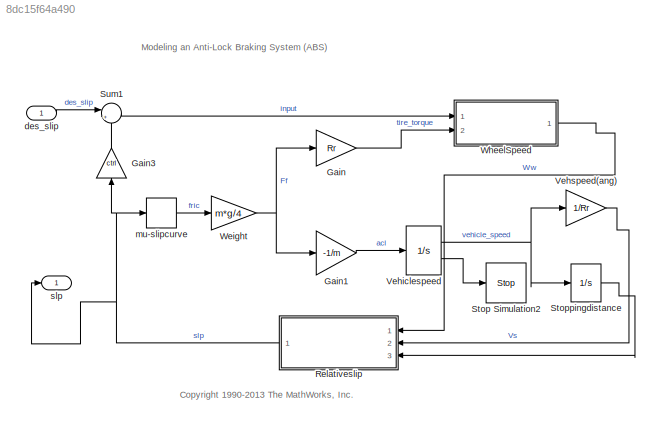
MODEL slx_8dc15f64a490
KIND model
CONFIG AbsTol = 1e-6
CONFIG EnableMultiTasking = off
CONFIG FixedStep = auto
CONFIG MaxStep = .01
CONFIG MinStep = auto
CONFIG PreLoadFcn = % Load initialization data\n\nsldemo_absdata;
CONFIG RelTol = 1e-3
CONFIG SampleTimeConstraint = Unconstrained
CONFIG Solver = ode45
CONFIG SolverName = ode45
CONFIG StartTime = 0.0
CONFIG StopFcn = %if exist ('sldemo_absbrake_output')\n%  sldemo_absbrakeplots;\n%end
CONFIG StopTime = 25
BLOCK [Gain] Gain
  Gain = Rr
BLOCK [Gain] Gain1
  Gain = -1/m
BLOCK [Gain] Gain3
  Gain = ctrl
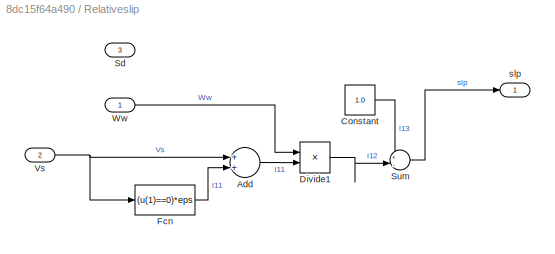
BLOCK [SubSystem] Relativeslip
  Ports = [3, 1]
  RequestExecContextInheritance = off
  TreatAsAtomicUnit = on
  Variant = off
BLOCK [Sum] Relativeslip/Add
  InputSameDT = off
  OutDataTypeStr = Inherit: Inherit via internal rule
  Ports = [2, 1]
  SaturateOnIntegerOverflow = off
BLOCK [Constant] Relativeslip/Constant
  Value = 1.0
BLOCK [Product] Relativeslip/Divide1
  InputSameDT = off
  Inputs = */
  OutDataTypeStr = Inherit: Inherit via internal rule
  Ports = [2, 1]
  RndMeth = Floor
  SaturateOnIntegerOverflow = off
BLOCK [Fcn] Relativeslip/Fcn
  Expr = (u(1)==0)*eps
BLOCK [Inport] Relativeslip/Sd
  IconDisplay = Port number
  Port = 3
BLOCK [Sum] Relativeslip/Sum
  IconShape = round
  InputSameDT = off
  Inputs = +|-
  OutDataTypeStr = Inherit: Inherit via internal rule
  Ports = [2, 1]
  SaturateOnIntegerOverflow = off
BLOCK [Inport] Relativeslip/Vs
  IconDisplay = Port number
  Port = 2
BLOCK [Inport] Relativeslip/Ww
  IconDisplay = Port number
BLOCK [Outport] Relativeslip/slp
  IconDisplay = Port number
BLOCK [Stop] Stop Simulation2
BLOCK [Integrator] Stoppingdistance
  LowerSaturationLimit = 0
  Ports = [1, 1]
  UpperSaturationLimit = 1000
BLOCK [Sum] Sum1
  IconShape = round
  Inputs = |+-
  Ports = [2, 1]
BLOCK [Integrator] Vehiclespeed
  InitialCondition = v0
  LimitOutput = on
  LowerSaturationLimit = 0
  Ports = [1, 2]
  ShowSaturationPort = on
  UpperSaturationLimit = 1000
BLOCK [Gain] Vehspeed(ang)
  Gain = 1/Rr
BLOCK [Gain] Weight
  Gain = m*g/4
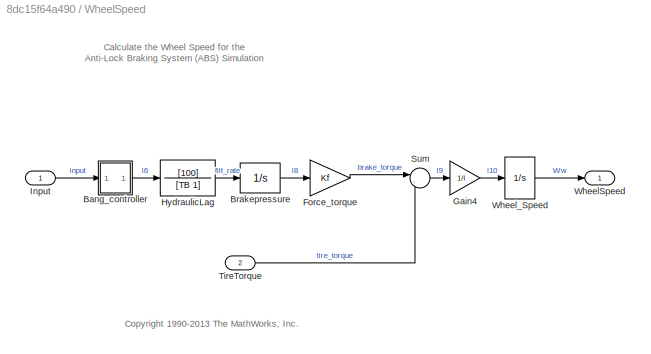
BLOCK [SubSystem] WheelSpeed
  Ports = [2, 1]
  RequestExecContextInheritance = off
  Variant = off
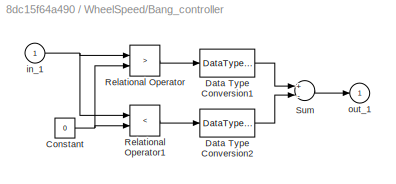
BLOCK [SubSystem] WheelSpeed/Bang_controller
  Ports = [1, 1]
  RequestExecContextInheritance = off
  TreatAsAtomicUnit = on
  Variant = off
BLOCK [Constant] WheelSpeed/Bang_controller/Constant
  Value = 0
BLOCK [DataTypeConversion] WheelSpeed/Bang_controller/Data Type Conversion1
  OutDataTypeStr = double
BLOCK [DataTypeConversion] WheelSpeed/Bang_controller/Data Type Conversion2
  OutDataTypeStr = double
BLOCK [RelationalOperator] WheelSpeed/Bang_controller/Relational Operator
  Operator = >
  OutDataTypeStr = boolean
  Ports = [2, 1]
BLOCK [RelationalOperator] WheelSpeed/Bang_controller/Relational Operator1
  Operator = <
  OutDataTypeStr = boolean
  Ports = [2, 1]
BLOCK [Sum] WheelSpeed/Bang_controller/Sum
  Inputs = +-
  Ports = [2, 1]
BLOCK [Inport] WheelSpeed/Bang_controller/in_1
  IconDisplay = Port number
BLOCK [Outport] WheelSpeed/Bang_controller/out_1
  IconDisplay = Port number
  InitialOutput = 0
BLOCK [Integrator] WheelSpeed/Brakepressure
  LimitOutput = on
  LowerSaturationLimit = 0
  Ports = [1, 1]
  UpperSaturationLimit = PBmax
BLOCK [Gain] WheelSpeed/Force_torque
  Gain = Kf
BLOCK [Gain] WheelSpeed/Gain4
  Gain = 1/I
BLOCK [TransferFcn] WheelSpeed/HydraulicLag
  Denominator = [TB 1]
  Numerator = [100]
BLOCK [Inport] WheelSpeed/Input
  IconDisplay = Port number
  SampleTime = 0
BLOCK [Sum] WheelSpeed/Sum
  IconShape = round
  Inputs = |-+
  Ports = [2, 1]
BLOCK [Inport] WheelSpeed/TireTorque
  IconDisplay = Port number
  Port = 2
BLOCK [Outport] WheelSpeed/WheelSpeed
  IconDisplay = Port number
BLOCK [Integrator] WheelSpeed/Wheel_Speed
  InitialCondition = v0/Rr
  LimitOutput = on
  LowerSaturationLimit = 0
  Ports = [1, 1]
  UpperSaturationLimit = 1000
BLOCK [Inport] des_slip
  IconDisplay = Port number
BLOCK [Lookup_n-D] mu-slipcurve
  BreakpointsForDimension1 = slip
  NumberOfTableDimensions = 1
  Ports = [1, 1]
  SaturateOnIntegerOverflow = on
  Table = mu
BLOCK [Outport] slp
  IconDisplay = Port number
ANNOTATION (root): <copyright redacted>
ANNOTATION (root): Modeling an Anti-Lock Braking System (ABS)
ANNOTATION WheelSpeed: Calculate the Wheel Speed for the Anti-Lock Braking System (ABS) Simulation
ANNOTATION WheelSpeed: <copyright redacted>
LINE Gain1:1 -> Vehiclespeed:1
LINE Gain3:1 -> Sum1:2
LINE Gain:1 -> WheelSpeed:2
LINE Relativeslip/Add:1 -> Relativeslip/Divide1:2
LINE Relativeslip/Constant:1 -> Relativeslip/Sum:1
LINE Relativeslip/Divide1:1 -> Relativeslip/Sum:2
LINE Relativeslip/Fcn:1 -> Relativeslip/Add:2
LINE Relativeslip/Sum:1 -> Relativeslip/slp:1
NET Relativeslip/Vs:1 -> Relativeslip/Add:1, Relativeslip/Fcn:1
LINE Relativeslip/Ww:1 -> Relativeslip/Divide1:1
NET Relativeslip:1 -> Gain3:1, mu-slipcurve:1, slp:1
LINE Stoppingdistance:1 -> Relativeslip:3
LINE Sum1:1 -> WheelSpeed:1
NET Vehiclespeed:1 -> Stoppingdistance:1, Vehspeed(ang):1
LINE Vehiclespeed:2 -> Stop Simulation2:1
LINE Vehspeed(ang):1 -> Relativeslip:2
NET Weight:1 -> Gain1:1, Gain:1
NET WheelSpeed/Bang_controller/Constant:1 -> WheelSpeed/Bang_controller/Relational Operator1:2, WheelSpeed/Bang_controller/Relational Operator:2
LINE WheelSpeed/Bang_controller/Data Type Conversion1:1 -> WheelSpeed/Bang_controller/Sum:1
LINE WheelSpeed/Bang_controller/Data Type Conversion2:1 -> WheelSpeed/Bang_controller/Sum:2
LINE WheelSpeed/Bang_controller/Relational Operator1:1 -> WheelSpeed/Bang_controller/Data Type Conversion2:1
LINE WheelSpeed/Bang_controller/Relational Operator:1 -> WheelSpeed/Bang_controller/Data Type Conversion1:1
LINE WheelSpeed/Bang_controller/Sum:1 -> WheelSpeed/Bang_controller/out_1:1
NET WheelSpeed/Bang_controller/in_1:1 -> WheelSpeed/Bang_controller/Relational Operator1:1, WheelSpeed/Bang_controller/Relational Operator:1
LINE WheelSpeed/Bang_controller:1 -> WheelSpeed/HydraulicLag:1
LINE WheelSpeed/Brakepressure:1 -> WheelSpeed/Force_torque:1
LINE WheelSpeed/Force_torque:1 -> WheelSpeed/Sum:1
LINE WheelSpeed/Gain4:1 -> WheelSpeed/Wheel_Speed:1
LINE WheelSpeed/HydraulicLag:1 -> WheelSpeed/Brakepressure:1
LINE WheelSpeed/Input:1 -> WheelSpeed/Bang_controller:1
LINE WheelSpeed/Sum:1 -> WheelSpeed/Gain4:1
LINE WheelSpeed/TireTorque:1 -> WheelSpeed/Sum:2
LINE WheelSpeed/Wheel_Speed:1 -> WheelSpeed/WheelSpeed:1
LINE WheelSpeed:1 -> Relativeslip:1
LINE des_slip:1 -> Sum1:1
LINE mu-slipcurve:1 -> Weight:1
note: NET lines group one-source signal fan-out (src -> all destinations, sorted); 1:1 wires keep LINE
